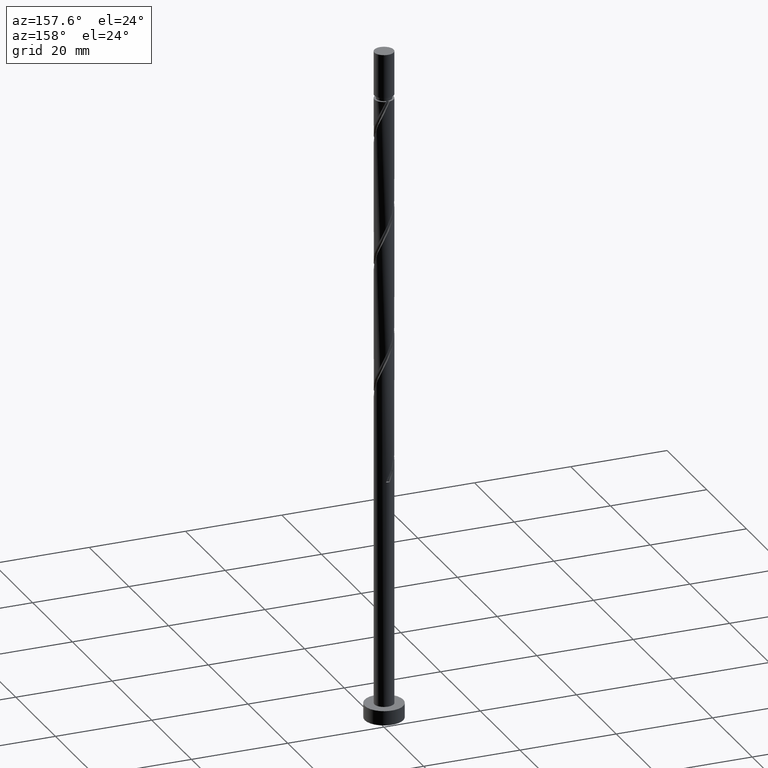
[diagram: clean part render]
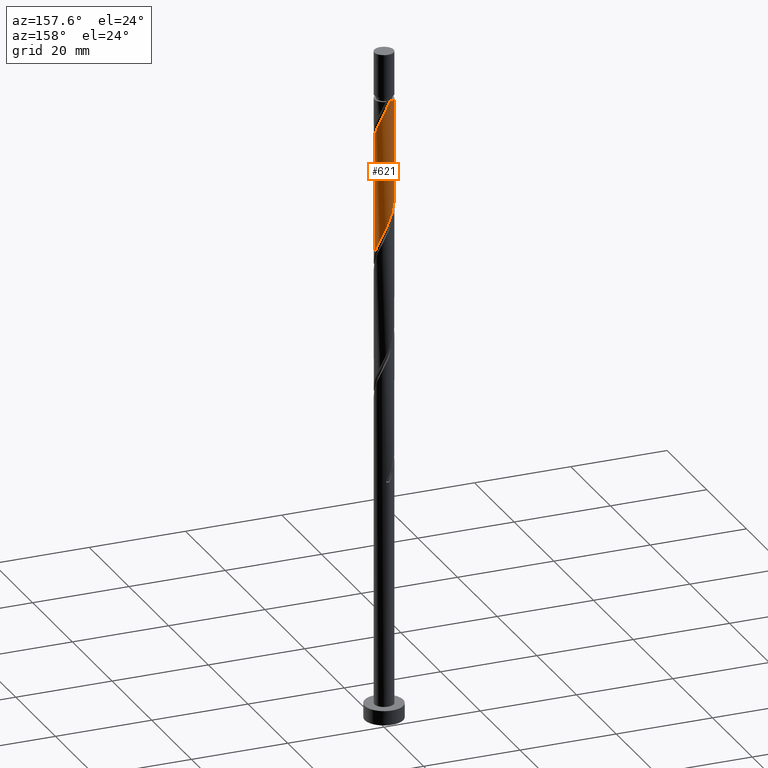
[diagram: same view with one face highlighted and labeled with its STEP entity id]
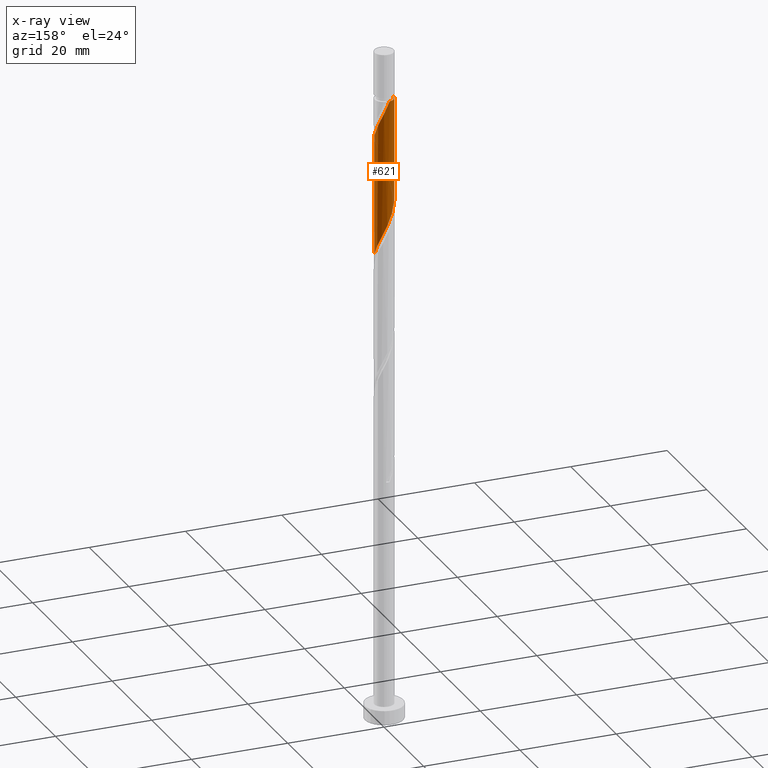
[diagram: x-ray of the same camera — body ghosted, the highlighted face saturated]
A machine part, auxiliary view. The second image highlights one B-rep face of the part: STEP entity #621.
The next image is the same camera in x-ray: the body ghosted, the highlighted face saturated — about 0% of this face is hidden behind the body in this view.
In plain terms, the highlighted cylindrical surface (edge-blend (fillet) strip) has radius 2 mm, axis along (-0, -0, -1).
Its self-contained STEP definition (entity closure, byte-faithful):
#10 = CARTESIAN_POINT ( 'NONE',  ( -0.3979949748426480083, 1.960000000000001741, 130.1507062925262233 ) ) ;
#65 = CARTESIAN_POINT ( 'NONE',  ( -0.1703224295138024702, 1.992734370156875157, 104.6961608379807274 ) ) ;
#74 = CARTESIAN_POINT ( 'NONE',  ( -2.000000000000000444, 1.884559408640555319E-15, 111.0001607718270407 ) ) ;
#83 = CARTESIAN_POINT ( 'NONE',  ( -1.980155124014551182, 0.4020876473299552778, 110.1507062925261522 ) ) ;
#117 = CARTESIAN_POINT ( 'NONE',  ( -0.3979949748426480083, 1.960000000000001741, 130.1507062925262233 ) ) ;
#149 = CARTESIAN_POINT ( 'NONE',  ( 1.980155124014553403, 0.4020876473299550558, 123.4840396258594950 ) ) ;
#175 = CYLINDRICAL_SURFACE ( 'NONE', #1252, 2.000000000000000000 ) ;
#199 = CARTESIAN_POINT ( 'NONE',  ( -1.786663747202082320, 0.9436744384215540737, 108.9385850804049483 ) ) ;
#229 =( BOUNDED_CURVE ( )  B_SPLINE_CURVE ( 2, ( #74, #583, #1591, #83, #443, #199, #830, #1345, #1098, #589, #706, #1216, #65, #999, #497, #1514, #886, #370, #753, #487, #1405, #1008, #868, #352, #477 ),
 .UNSPECIFIED., .F., .T. ) 
 B_SPLINE_CURVE_WITH_KNOTS ( ( 3, 2, 2, 2, 2, 2, 2, 2, 2, 2, 2, 2, 3 ),
 ( 0.4295252162417515507, 0.4318181818181818232, 0.4431818181818181768, 0.4545454545454545303, 0.4659090909090908839, 0.4772727272727272929, 0.4886363636363636465, 0.5000000000000000000, 0.5113636363636363535, 0.5227272727272727071, 0.5340909090909090606, 0.5454545454545454142, 0.5545252162417513286 ),
 .UNSPECIFIED. ) 
 CURVE ( )  GEOMETRIC_REPRESENTATION_ITEM ( )  RATIONAL_B_SPLINE_CURVE ( ( 0.9061101570135570160, 0.9072237824201392353, 0.9090909090909164991, 0.8998376744372188485, 0.9090909090909164991, 0.8998376744372188485, 0.9090909090909164991, 0.8998376744372188485, 0.9090909090909164991, 0.8998376744372188485, 0.9090909090909164991, 0.8998376744372188485, 0.9090909090909164991, 0.8998376744372188485, 0.9090909090909164991, 0.8998376744372188485, 0.9090909090909164991, 0.8998376744372188485, 0.9090909090909164991, 0.8998376744372188485, 0.9090909090909164991, 0.8998376744372188485, 0.9090909090909164991, 0.9017048011079962233, 0.9061101570135567940 ) ) 
 REPRESENTATION_ITEM ( '' )  );
#272 = CARTESIAN_POINT ( 'NONE',  ( 0.4568343776401065925, 1.968245701812303405, 128.3325244743443534 ) ) ;
#338 = CIRCLE ( 'NONE', #1257, 1.999999999999996669 ) ;
#352 = CARTESIAN_POINT ( 'NONE',  ( 2.000000000000000888, 0.2290578547702440404, 98.15278739146502573 ) ) ;
#370 = CARTESIAN_POINT ( 'NONE',  ( 1.188337955536407531, 1.634179211325358372, 101.6658578076776536 ) ) ;
#376 = ORIENTED_EDGE ( 'NONE', *, *, #742, .F. ) ;
#384 = CARTESIAN_POINT ( 'NONE',  ( 1.448427499289744569, 1.408810338760220437, 125.9082820501019029 ) ) ;
#394 = DIRECTION ( 'NONE',  ( -1.000000000000000000, 0.000000000000000000, 0.000000000000000000 ) ) ;
#405 = CARTESIAN_POINT ( 'NONE',  ( 2.000000000000002665, 1.278808170148940589E-15, 122.6345851465586065 ) ) ;
#438 = DIRECTION ( 'NONE',  ( -0.000000000000000000, -0.000000000000000000, -1.000000000000000000 ) ) ;
#443 = CARTESIAN_POINT ( 'NONE',  ( -1.883409435608316418, 0.6728810428757542317, 109.5446456864655715 ) ) ;
#450 = EDGE_CURVE ( 'NONE', #1561, #1438, #1521, .T. ) ;
#463 = DIRECTION ( 'NONE',  ( -0.000000000000000000, -0.000000000000000000, -1.000000000000000000 ) ) ;
#477 = CARTESIAN_POINT ( 'NONE',  ( 2.000000000000000444, -2.303350388338456764E-15, 97.66682743849371207 ) ) ;
#487 = CARTESIAN_POINT ( 'NONE',  ( 1.600603406160404418, 1.233189980288572851, 100.4537365955564638 ) ) ;
#497 = CARTESIAN_POINT ( 'NONE',  ( 0.3979949748426487854, 1.959999999999999964, 103.4840396258595092 ) ) ;
#528 = CARTESIAN_POINT ( 'NONE',  ( 2.000000000000002665, 1.278808170148940589E-15, 122.6345851465586065 ) ) ;
#539 = EDGE_CURVE ( 'NONE', #1561, #745, #338, .T. ) ;
#583 = CARTESIAN_POINT ( 'NONE',  ( -2.000000000000000000, 0.05755105304765017332, 110.8780627671088013 ) ) ;
#589 = CARTESIAN_POINT ( 'NONE',  ( -0.9928482695149674075, 1.759812803970227879, 106.5143426561625404 ) ) ;
#619 = CARTESIAN_POINT ( 'NONE',  ( 1.786663747202085206, 0.9436744384215541848, 124.6961608379806847 ) ) ;
#621 = ADVANCED_FACE ( 'NONE', ( #815 ), #175, .T. ) ;
#652 = CARTESIAN_POINT ( 'NONE',  ( 0.1703224295138031641, 1.992734370156877821, 128.9385850804049198 ) ) ;
#653 = ORIENTED_EDGE ( 'NONE', *, *, #1150, .F. ) ;
#661 = DIRECTION ( 'NONE',  ( -0.000000000000000000, -0.000000000000000000, -1.000000000000000000 ) ) ;
#706 = CARTESIAN_POINT ( 'NONE',  ( -0.7248413235775362784, 1.864029252891264310, 105.9082820501019313 ) ) ;
#742 = EDGE_CURVE ( 'NONE', #783, #745, #928, .T. ) ;
#745 = VERTEX_POINT ( 'NONE', #10 ) ;
#753 = CARTESIAN_POINT ( 'NONE',  ( 1.394470680848405975, 1.433684595806965723, 101.0597972016170871 ) ) ;
#755 = CARTESIAN_POINT ( 'NONE',  ( 0.000000000000000000, 0.000000000000000000, 140.0000000000000000 ) ) ;
#769 = EDGE_LOOP ( 'NONE', ( #376, #892, #653, #1420, #1179 ) ) ;
#783 = VERTEX_POINT ( 'NONE', #405 ) ;
#794 = DIRECTION ( 'NONE',  ( -0.000000000000000000, -0.000000000000000000, -1.000000000000000000 ) ) ;
#815 = FACE_OUTER_BOUND ( 'NONE', #769, .T. ) ;
#830 = CARTESIAN_POINT ( 'NONE',  ( -1.617545623245911779, 1.176242388590887256, 108.3325244743443392 ) ) ;
#834 = CARTESIAN_POINT ( 'NONE',  ( 2.000000000000000000, 2.449293598294706414E-16, 140.0000000000000000 ) ) ;
#868 = CARTESIAN_POINT ( 'NONE',  ( 1.948211798543800333, 0.4521844623765071680, 98.63555477737466504 ) ) ;
#886 = CARTESIAN_POINT ( 'NONE',  ( 0.9340691933046019191, 1.768478086411955363, 102.2719184137382769 ) ) ;
#888 = CARTESIAN_POINT ( 'NONE',  ( -0.1161895186125001117, 2.017223038501450461, 129.5446456864655431 ) ) ;
#892 = ORIENTED_EDGE ( 'NONE', *, *, #926, .T. ) ;
#899 = VERTEX_POINT ( 'NONE', #973 ) ;
#926 = EDGE_CURVE ( 'NONE', #783, #899, #1586, .T. ) ;
#927 = CARTESIAN_POINT ( 'NONE',  ( 0.000000000000000000, 0.000000000000000000, 130.1507062925261664 ) ) ;
#928 =( BOUNDED_CURVE ( )  B_SPLINE_CURVE ( 2, ( #528, #1516, #1525, #149, #1255, #619, #1042, #384, #1023, #1661, #1154, #272, #652, #888, #117 ),
 .UNSPECIFIED., .F., .T. ) 
 B_SPLINE_CURVE_WITH_KNOTS ( ( 3, 2, 2, 2, 2, 2, 2, 3 ),
 ( 0.6795252162417511066, 0.6818181818181818787, 0.6931818181818181213, 0.7045454545454545858, 0.7159090909090908283, 0.7272727272727272929, 0.7386363636363636465, 0.7500000000000000000 ),
 .UNSPECIFIED. ) 
 CURVE ( )  GEOMETRIC_REPRESENTATION_ITEM ( )  RATIONAL_B_SPLINE_CURVE ( ( 0.9061101570135619010, 0.9072237824201441203, 0.9090909090909219392, 0.8998376744372241776, 0.9090909090909219392, 0.8998376744372241776, 0.9090909090909219392, 0.8998376744372241776, 0.9090909090909219392, 0.8998376744372241776, 0.9090909090909219392, 0.8998376744372241776, 0.9090909090909219392, 0.8998376744372241776, 0.9090909090909219392 ) ) 
 REPRESENTATION_ITEM ( '' )  );
#973 = CARTESIAN_POINT ( 'NONE',  ( 2.000000000000000444, -2.303350388338456764E-15, 97.66682743849371207 ) ) ;
#999 = CARTESIAN_POINT ( 'NONE',  ( 0.1161895186125005419, 2.017223038501447796, 104.0901002319201041 ) ) ;
#1008 = CARTESIAN_POINT ( 'NONE',  ( 1.883197487972271933, 0.7322950311120131062, 99.24161538343525990 ) ) ;
#1023 = CARTESIAN_POINT ( 'NONE',  ( 1.220637884402355988, 1.584311571365226046, 126.5143426561625404 ) ) ;
#1042 = CARTESIAN_POINT ( 'NONE',  ( 1.617545623245914443, 1.176242388590887700, 125.3022214440413222 ) ) ;
#1098 = CARTESIAN_POINT ( 'NONE',  ( -1.220637884402354434, 1.584311571365224047, 107.1204032622231210 ) ) ;
#1150 = EDGE_CURVE ( 'NONE', #1438, #899, #229, .T. ) ;
#1154 = CARTESIAN_POINT ( 'NONE',  ( 0.7248413235775371666, 1.864029252891267197, 127.7264638682837585 ) ) ;
#1179 = ORIENTED_EDGE ( 'NONE', *, *, #539, .T. ) ;
#1182 = VECTOR ( 'NONE', #438, 1000.000000000000000 ) ;
#1196 = DIRECTION ( 'NONE',  ( -1.000000000000000000, 0.000000000000000000, 0.000000000000000000 ) ) ;
#1203 = VECTOR ( 'NONE', #463, 1000.000000000000000 ) ;
#1216 = CARTESIAN_POINT ( 'NONE',  ( -0.4568343776401055933, 1.968245701812301407, 105.3022214440413507 ) ) ;
#1252 = AXIS2_PLACEMENT_3D ( 'NONE', #755, #661, #394 ) ;
#1255 = CARTESIAN_POINT ( 'NONE',  ( 1.883409435608319527, 0.6728810428757547868, 124.0901002319201041 ) ) ;
#1257 = AXIS2_PLACEMENT_3D ( 'NONE', #927, #794, #1196 ) ;
#1345 = CARTESIAN_POINT ( 'NONE',  ( -1.448427499289741460, 1.408810338760219993, 107.7264638682837585 ) ) ;
#1405 = CARTESIAN_POINT ( 'NONE',  ( 1.741900447066338176, 0.9827425057002936448, 99.84767598949586898 ) ) ;
#1420 = ORIENTED_EDGE ( 'NONE', *, *, #450, .F. ) ;
#1438 = VERTEX_POINT ( 'NONE', #1483 ) ;
#1483 = CARTESIAN_POINT ( 'NONE',  ( -2.000000000000000444, 1.884559408640555319E-15, 111.0001607718270407 ) ) ;
#1514 = CARTESIAN_POINT ( 'NONE',  ( 0.6798004310727963073, 1.902776961498551689, 102.8779790197989144 ) ) ;
#1516 = CARTESIAN_POINT ( 'NONE',  ( 2.000000000000003109, 0.05755105304763762086, 122.7566831512768175 ) ) ;
#1521 = LINE ( 'NONE', #1613, #1203 ) ;
#1525 = CARTESIAN_POINT ( 'NONE',  ( 1.996690616564942733, 0.1150068768444765244, 122.8779790197988859 ) ) ;
#1561 = VERTEX_POINT ( 'NONE', #1595 ) ;
#1586 = LINE ( 'NONE', #834, #1182 ) ;
#1591 = CARTESIAN_POINT ( 'NONE',  ( -1.996690616564939846, 0.1150068768444770934, 110.7567668985867471 ) ) ;
#1595 = CARTESIAN_POINT ( 'NONE',  ( -1.999999999999996669, 0.000000000000000000, 130.1507062925261664 ) ) ;
#1613 = CARTESIAN_POINT ( 'NONE',  ( -2.000000000000000000, 0.000000000000000000, 140.0000000000000000 ) ) ;
#1661 = CARTESIAN_POINT ( 'NONE',  ( 0.9928482695149681847, 1.759812803970230322, 127.1204032622231352 ) ) ;